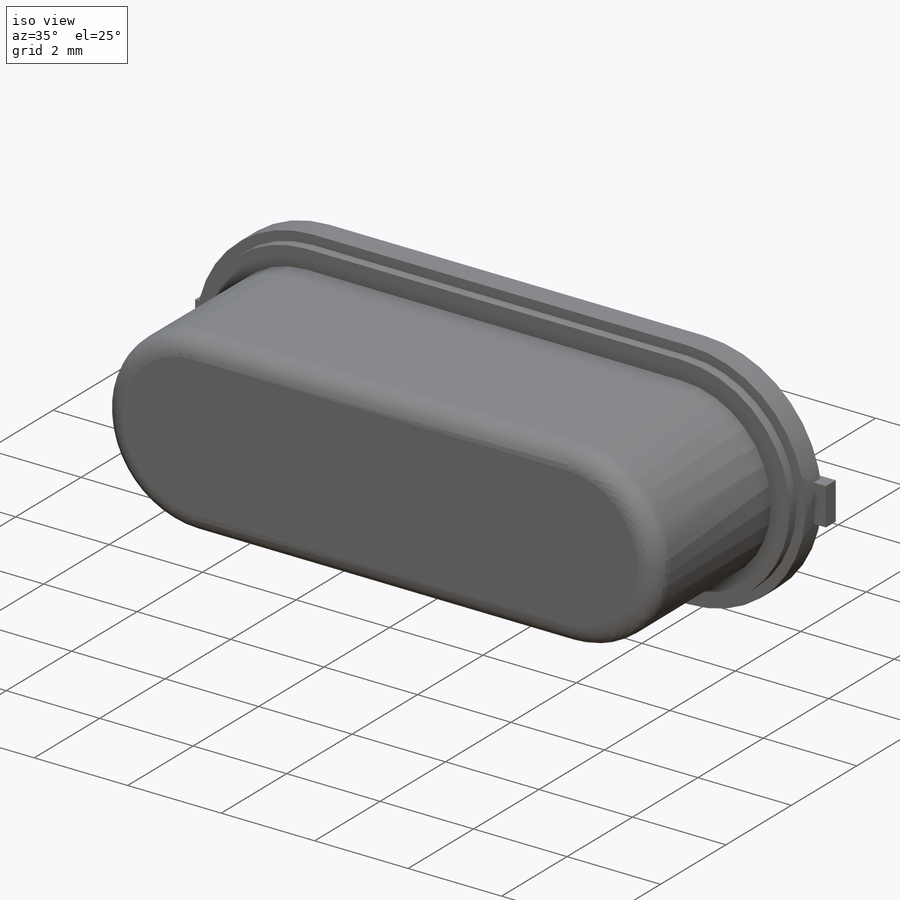
[diagram: iso view]
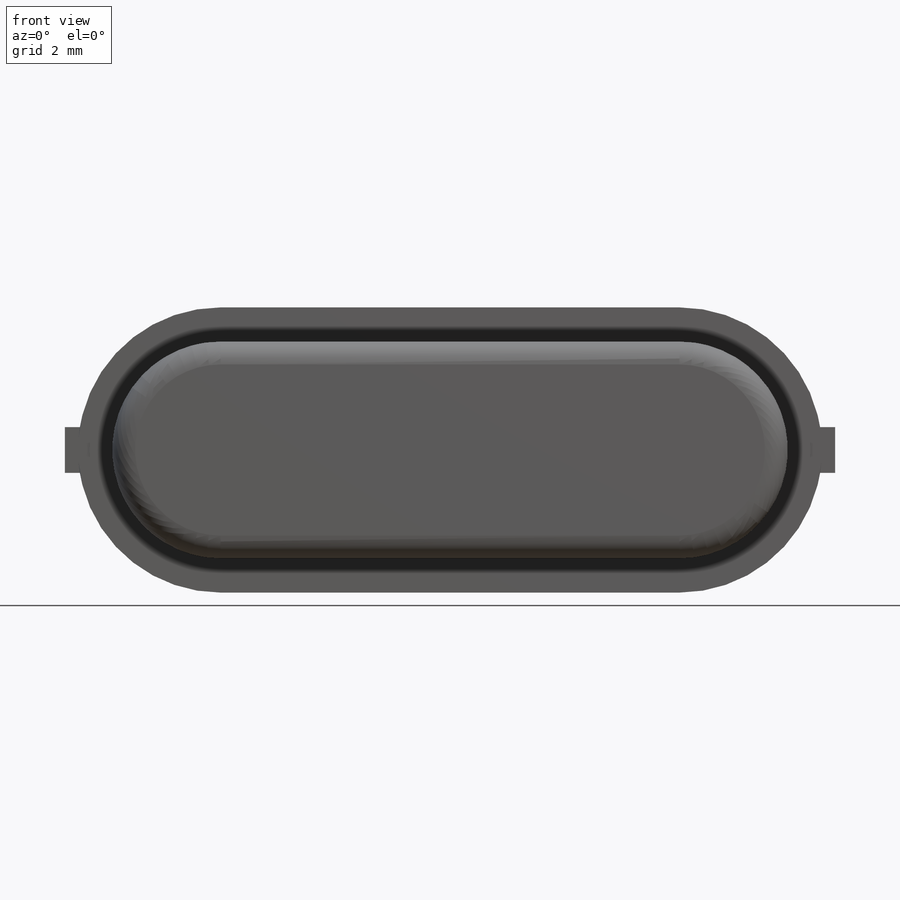
[diagram: front view]
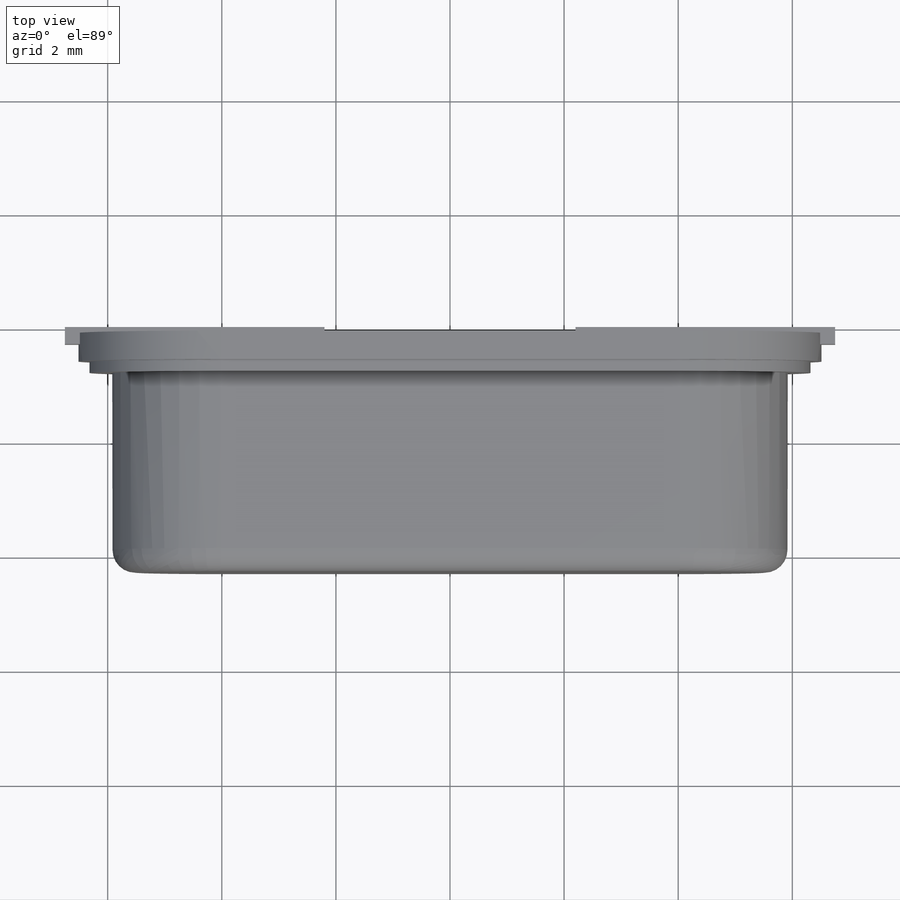
[diagram: top view]
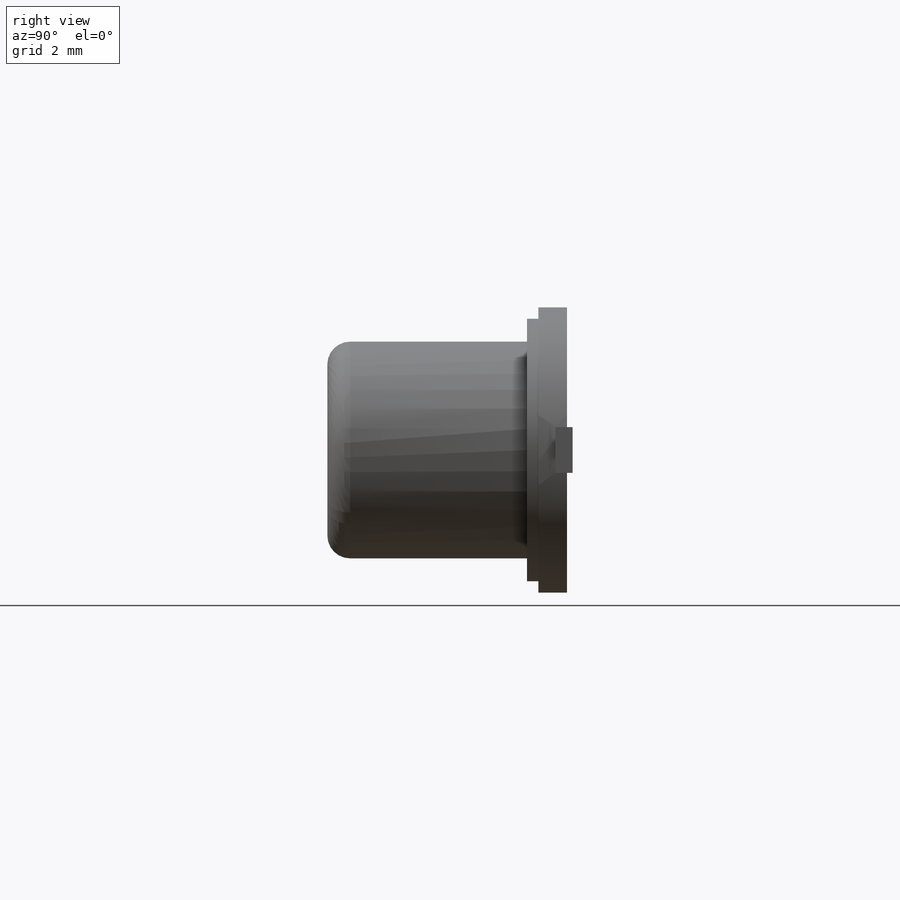
[diagram: right view]
SOLIDWORKS PART (.sldprt)
format: sldprt  version: not decoded by parser v0  size: 243,200 bytes
history: native  units: mm
features: sketch x5, cut_extrude x3, extrude x2, material x1, fillet x1 (+12 scaffold rows collapsed)
feature tree (24):
  scaffold x12  (default folders/planes/origin — collapsed)
  material  "1023 Carbon Steel Sheet (SS)"
  sketch  "Sketch1"  dims[D1=~8.039909mm]
  extrude  "Boss-Extrude1"  Depth=4.3mm
  sketch  "Sketch2"  dims[D1=3.8mm]
  cut_extrude  "Cut-Extrude1"  Depth=0.8mm
  fillet  "Fillet1"  Radius=0.4mm
  sketch  "Sketch3"  dims[D1=0.2mm]
  cut_extrude  "Cut-Extrude2"  Depth=0.6mm
  sketch  "Sketch5"  dims[D1=~7.601963mm D2=~15.203925mm]
  cut_extrude  "Cut-Extrude3"  Depth=0.1mm
  sketch  "Sketch6"  dims[c1.D1=~1.483945mm c1.D2=~3.371418mm c2.D1=~1.601098mm c2.D2=~4.282612mm c3.D1=13.5mm c3.D2=0.8mm c3.D3=4.4mm]
  extrude  "Boss-Extrude2"  Depth=0.3mm
decode coverage: 11 of 11 modeling features carry decoded parameters
note: ~ marks probable driven/reference dimensions
note: suppression state not decoded; provenance and decode notes live in map.json
